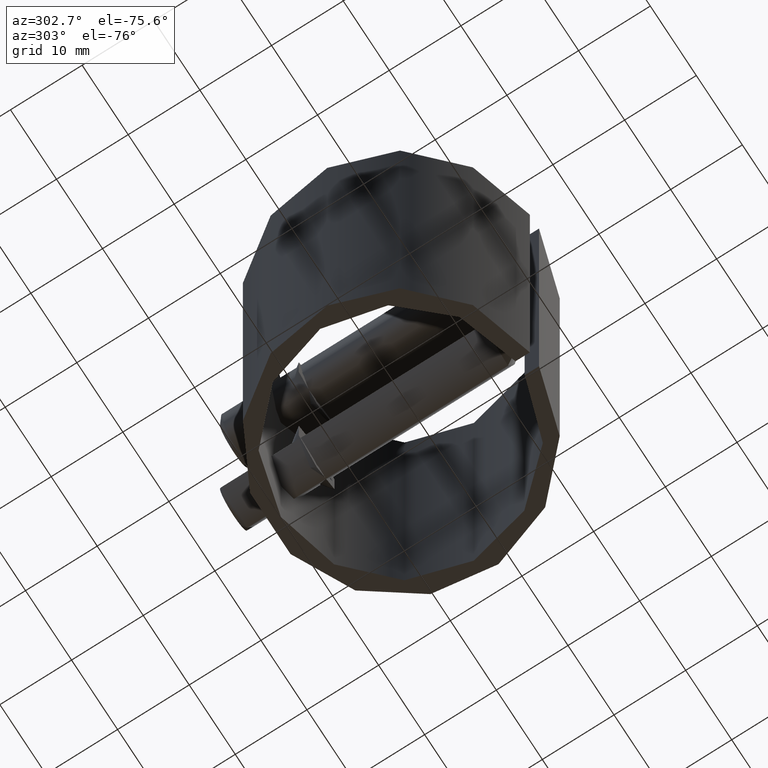
[diagram: clean part render]
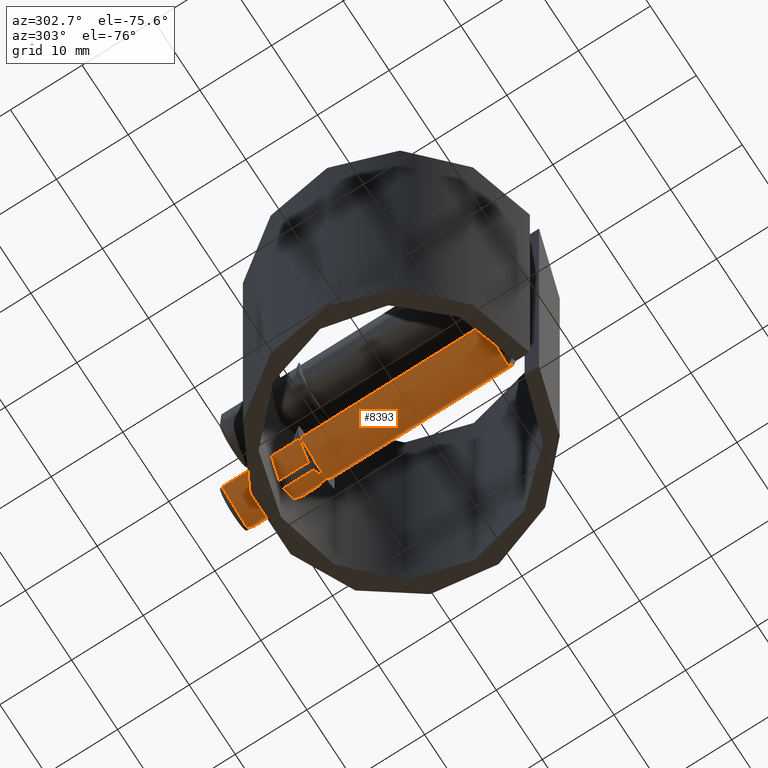
[diagram: same view with one face highlighted and labeled with its STEP entity id]
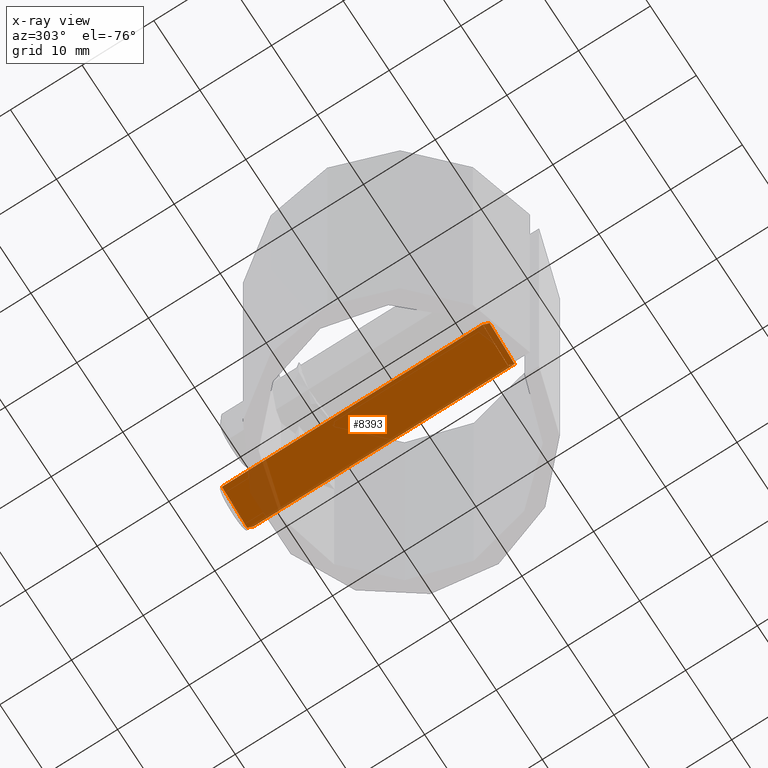
[diagram: x-ray of the same camera — body ghosted, the highlighted face saturated]
A machine part, auxiliary view. The second image highlights one B-rep face of the part: STEP entity #8393.
The next image is the same camera in x-ray: the body ghosted, the highlighted face saturated — about 9% of this face is hidden behind the body in this view.
In plain terms, the highlighted cylindrical surface (bore or boss wall) has radius 4 mm, axis along (0, -1, 0).
Its self-contained STEP definition (entity closure, byte-faithful):
#657 = AXIS2_PLACEMENT_3D ( 'NONE', #11677, #13868, #828 ) ;
#828 = DIRECTION ( 'NONE',  ( 0.000000000000000000, 0.000000000000000000, -1.000000000000000000 ) ) ;
#965 = CARTESIAN_POINT ( 'NONE',  ( 40.00000000000000000, 0.000000000000000000, 0.000000000000000000 ) ) ;
#1489 = EDGE_LOOP ( 'NONE', ( #3759 ) ) ;
#3759 = ORIENTED_EDGE ( 'NONE', *, *, #5070, .T. ) ;
#4009 = FACE_OUTER_BOUND ( 'NONE', #1489, .T. ) ;
#4221 = CIRCLE ( 'NONE', #657, 4.000000000000000000 ) ;
#5070 = EDGE_CURVE ( 'NONE', #10844, #10844, #4221, .T. ) ;
#6846 = EDGE_CURVE ( 'NONE', #8263, #8263, #14579, .T. ) ;
#6898 = DIRECTION ( 'NONE',  ( 0.000000000000000000, 0.000000000000000000, 1.000000000000000000 ) ) ;
#7005 = AXIS2_PLACEMENT_3D ( 'NONE', #965, #9336, #6898 ) ;
#7092 = AXIS2_PLACEMENT_3D ( 'NONE', #9642, #10893, #8563 ) ;
#7116 = FACE_OUTER_BOUND ( 'NONE', #12768, .T. ) ;
#7459 = CARTESIAN_POINT ( 'NONE',  ( 39.39999999999999858, 0.000000000000000000, -4.000000000000000000 ) ) ;
#8263 = VERTEX_POINT ( 'NONE', #7459 ) ;
#8393 = ADVANCED_FACE ( 'NONE', ( #7116, #4009 ), #15305, .T. ) ;
#8563 = DIRECTION ( 'NONE',  ( 0.000000000000000000, 0.000000000000000000, -1.000000000000000000 ) ) ;
#9336 = DIRECTION ( 'NONE',  ( -1.000000000000000000, -0.000000000000000000, -0.000000000000000000 ) ) ;
#9642 = CARTESIAN_POINT ( 'NONE',  ( 39.39999999999999858, 0.000000000000000000, 0.000000000000000000 ) ) ;
#10844 = VERTEX_POINT ( 'NONE', #12258 ) ;
#10893 = DIRECTION ( 'NONE',  ( -1.000000000000000000, 0.000000000000000000, 0.000000000000000000 ) ) ;
#11677 = CARTESIAN_POINT ( 'NONE',  ( 3.000000000000002665, 0.000000000000000000, 0.000000000000000000 ) ) ;
#12258 = CARTESIAN_POINT ( 'NONE',  ( 3.000000000000002665, 0.000000000000000000, -4.000000000000000000 ) ) ;
#12768 = EDGE_LOOP ( 'NONE', ( #13318 ) ) ;
#13318 = ORIENTED_EDGE ( 'NONE', *, *, #6846, .T. ) ;
#13868 = DIRECTION ( 'NONE',  ( 1.000000000000000000, -0.000000000000000000, -0.000000000000000000 ) ) ;
#14579 = CIRCLE ( 'NONE', #7092, 4.000000000000000000 ) ;
#15305 = CYLINDRICAL_SURFACE ( 'NONE', #7005, 4.000000000000000000 ) ;